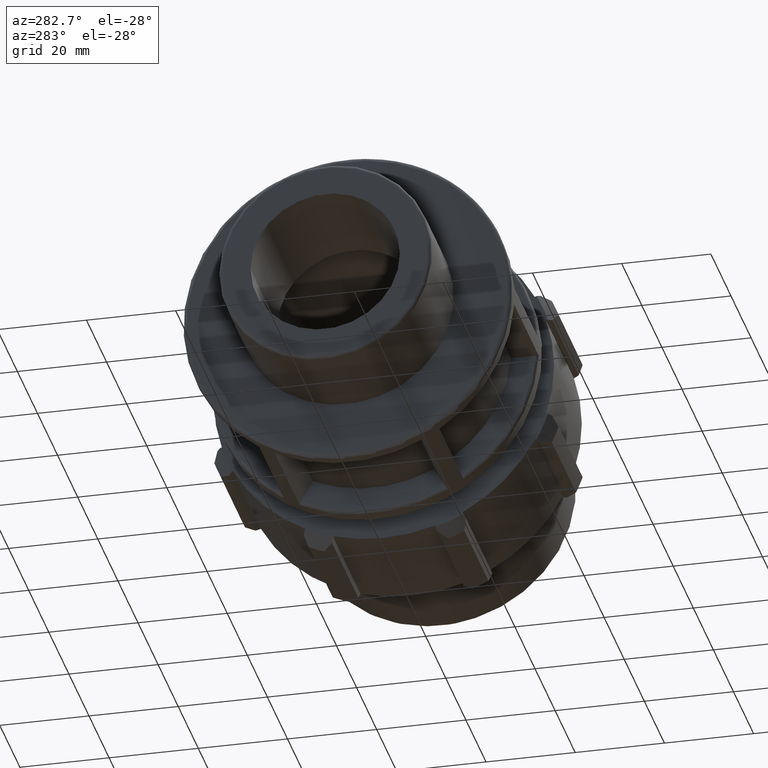
[diagram: clean part render]
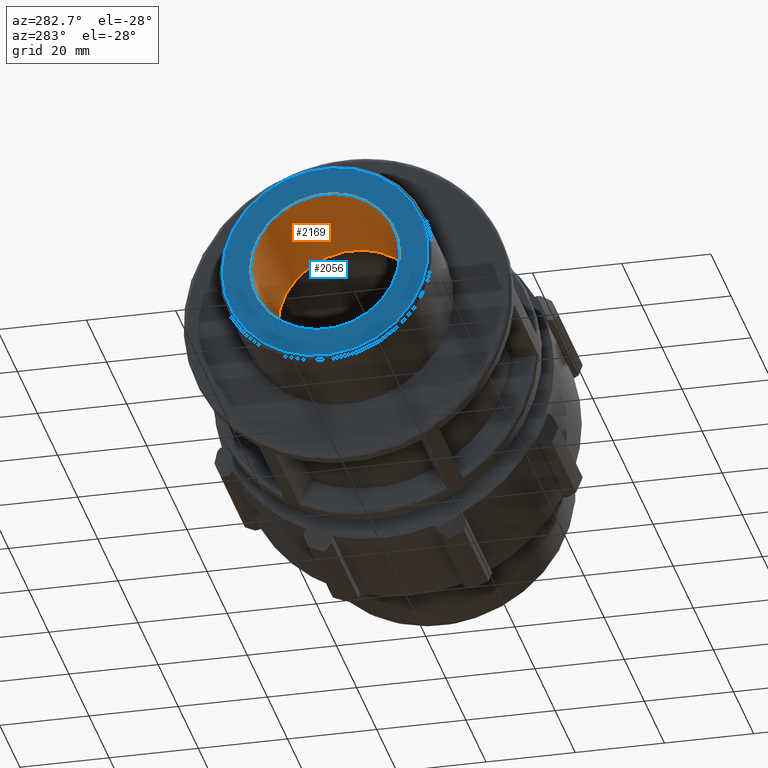
[diagram: same view with the hole feature highlighted: cylindrical wall and planar end face, labeled with their STEP entity ids]
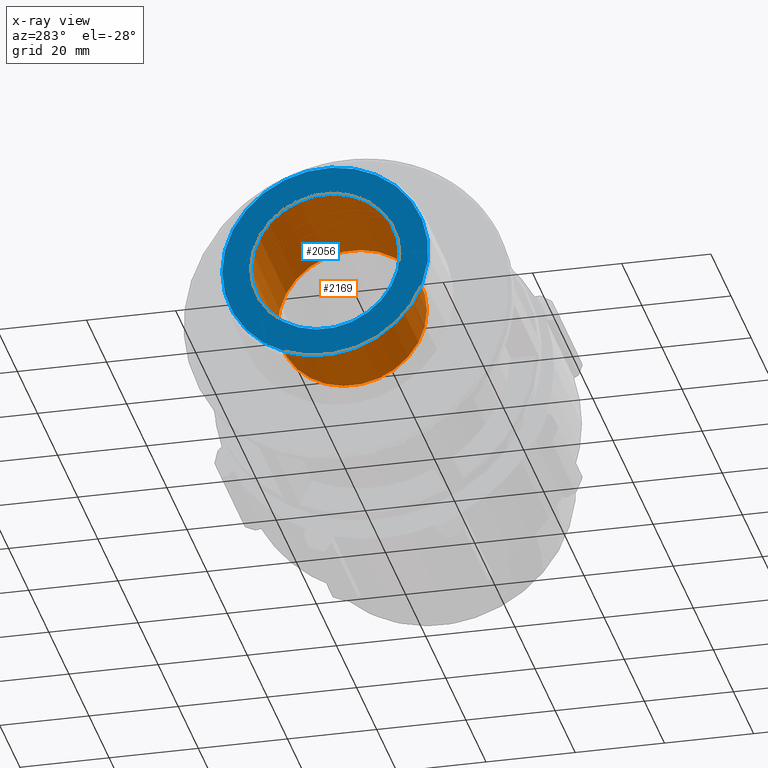
[diagram: x-ray of the same camera — body ghosted, the hole faces saturated]
A machine part, auxiliary view. The highlighted faces form one hole feature of diameter 33.462 mm: the cylindrical wall (entity #2169, orange) and its adjacent planar end face (entity #2056, blue) — they share a circular edge in the B-rep.
The next image is the same camera in x-ray (body ghosted, the hole faces saturated) — the bore reads through the body.
Wall:
#395=CYLINDRICAL_SURFACE('',#2382,16.73105);
#482=FACE_BOUND('',#739,.T.);
#599=FACE_OUTER_BOUND('',#738,.T.);
#738=EDGE_LOOP('',(#1916));
#739=EDGE_LOOP('',(#1917));
#746=CIRCLE('',#2178,16.73105);
#837=CIRCLE('',#2381,16.73105);
#840=VERTEX_POINT('',#2960);
#1039=VERTEX_POINT('',#3842);
#1042=EDGE_CURVE('',#840,#840,#746,.T.);
#1333=EDGE_CURVE('',#1039,#1039,#837,.T.);
#1916=ORIENTED_EDGE('',*,*,#1042,.F.);
#1917=ORIENTED_EDGE('',*,*,#1333,.T.);
#2169=ADVANCED_FACE('',(#599,#482),#395,.F.);
#2178=AXIS2_PLACEMENT_3D('',#2961,#2395,#2396);
#2381=AXIS2_PLACEMENT_3D('',#3843,#2945,#2946);
#2382=AXIS2_PLACEMENT_3D('',#3844,#2947,#2948);
#2395=DIRECTION('center_axis',(1.,0.,0.));
#2396=DIRECTION('ref_axis',(0.,0.,-1.));
#2945=DIRECTION('center_axis',(1.,0.,0.));
#2946=DIRECTION('ref_axis',(0.,0.,-1.));
#2947=DIRECTION('center_axis',(1.,0.,0.));
#2948=DIRECTION('ref_axis',(0.,1.,0.));
#2960=CARTESIAN_POINT('',(0.,16.73105,0.));
#2961=CARTESIAN_POINT('Origin',(0.,0.,0.));
#3842=CARTESIAN_POINT('',(27.,16.73105,0.));
#3843=CARTESIAN_POINT('Origin',(27.,0.,0.));
#3844=CARTESIAN_POINT('Origin',(13.5,0.,0.));
End face:
#397=PLANE('',#2177);
#461=FACE_BOUND('',#605,.T.);
#486=FACE_OUTER_BOUND('',#604,.T.);
#604=EDGE_LOOP('',(#1336));
#605=EDGE_LOOP('',(#1337));
#744=CIRCLE('',#2175,23.1015);
#746=CIRCLE('',#2178,16.73105);
#838=VERTEX_POINT('',#2955);
#840=VERTEX_POINT('',#2960);
#1040=EDGE_CURVE('',#838,#838,#744,.T.);
#1042=EDGE_CURVE('',#840,#840,#746,.T.);
#1336=ORIENTED_EDGE('',*,*,#1040,.F.);
#1337=ORIENTED_EDGE('',*,*,#1042,.T.);
#2056=ADVANCED_FACE('',(#486,#461),#397,.T.);
#2175=AXIS2_PLACEMENT_3D('',#2956,#2389,#2390);
#2177=AXIS2_PLACEMENT_3D('',#2959,#2393,#2394);
#2178=AXIS2_PLACEMENT_3D('',#2961,#2395,#2396);
#2389=DIRECTION('center_axis',(1.,0.,0.));
#2390=DIRECTION('ref_axis',(0.,-1.,1.83697019872103E-16));
#2393=DIRECTION('center_axis',(-1.,0.,0.));
#2394=DIRECTION('ref_axis',(0.,0.,1.));
#2395=DIRECTION('center_axis',(1.,0.,0.));
#2396=DIRECTION('ref_axis',(0.,0.,-1.));
#2955=CARTESIAN_POINT('',(0.,23.1015,-1.41455890152513E-15));
#2956=CARTESIAN_POINT('Origin',(0.,0.,0.));
#2959=CARTESIAN_POINT('Origin',(0.,23.9015,0.));
#2960=CARTESIAN_POINT('',(0.,16.73105,0.));
#2961=CARTESIAN_POINT('Origin',(0.,0.,0.));